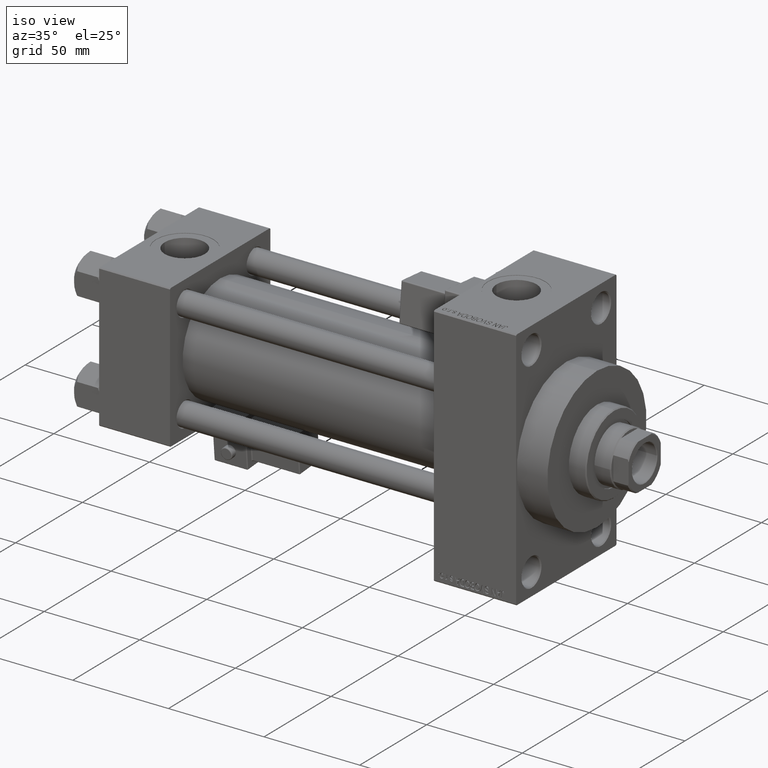
[diagram: clean part render]
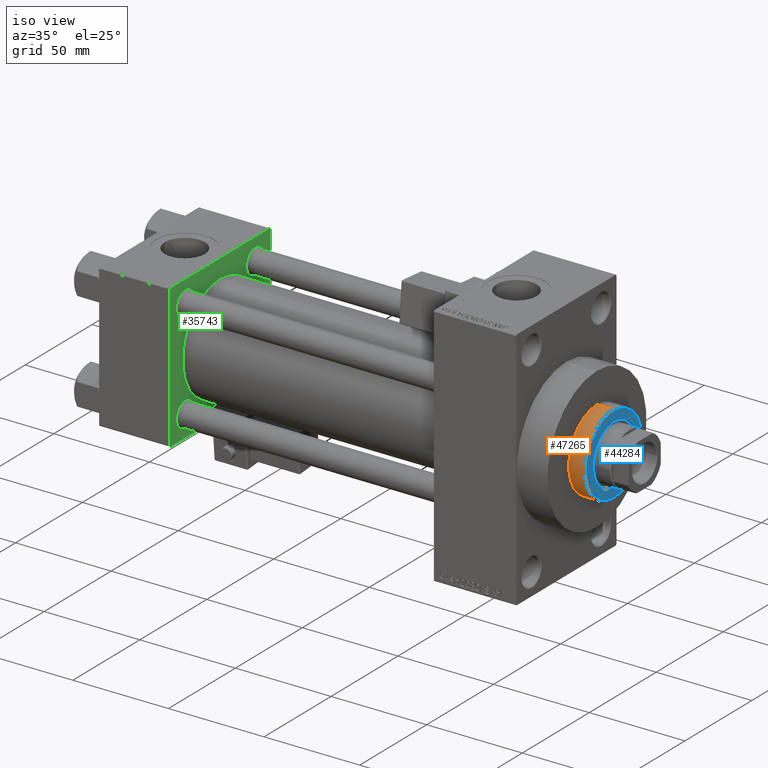
[diagram: same view with three faces highlighted in distinct colors, each labeled with its STEP entity id]
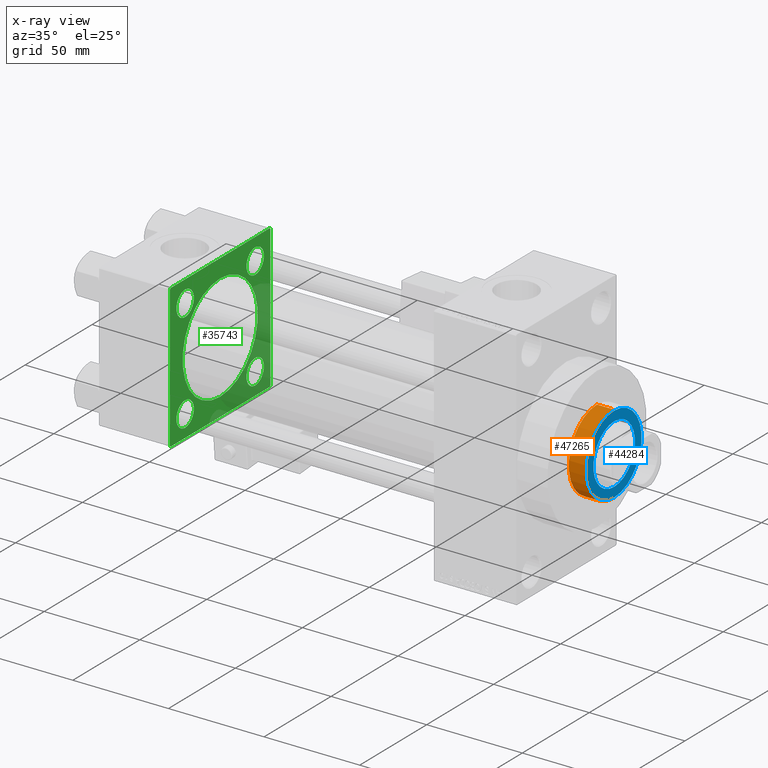
[diagram: x-ray of the same camera — body ghosted, the three highlighted faces saturated]
A machine part, iso view with three faces highlighted in distinct colors.
The next image is the same camera in x-ray (body ghosted, the three faces saturated) — at least one of them is partly hidden behind the body in this view.
Their STEP definitions:

[orange] entity #47265 — the highlighted cylindrical surface (partial cylindrical patch) has radius 21 mm, axis along (-1, -0, 0).
#15 = LINE ( 'NONE', #41246, #29771 ) ;
#1898 = LINE ( 'NONE', #2405, #3151 ) ;
#2405 = CARTESIAN_POINT ( 'NONE',  ( 21.00000000000000000, 2.571758278209441661E-15, 52.25999999999999801 ) ) ;
#3151 = VECTOR ( 'NONE', #32662, 1000.000000000000000 ) ;
#4585 = DIRECTION ( 'NONE',  ( 0.000000000000000000, 0.000000000000000000, 1.000000000000000000 ) ) ;
#4718 = EDGE_LOOP ( 'NONE', ( #48712, #7835, #38796, #14060 ) ) ;
#5081 = CARTESIAN_POINT ( 'NONE',  ( -21.00000000000000000, 0.000000000000000000, 43.25999999999999801 ) ) ;
#7835 = ORIENTED_EDGE ( 'NONE', *, *, #13190, .T. ) ;
#9550 = CIRCLE ( 'NONE', #11954, 21.00000000000000000 ) ;
#11159 = DIRECTION ( 'NONE',  ( -1.000000000000000000, 0.000000000000000000, 0.000000000000000000 ) ) ;
#11352 = DIRECTION ( 'NONE',  ( 1.000000000000000000, 0.000000000000000000, 0.000000000000000000 ) ) ;
#11606 = VERTEX_POINT ( 'NONE', #28533 ) ;
#11954 = AXIS2_PLACEMENT_3D ( 'NONE', #19396, #16867, #17103 ) ;
#11981 = EDGE_CURVE ( 'NONE', #31150, #11606, #1898, .T. ) ;
#12017 = CIRCLE ( 'NONE', #43939, 21.00000000000000000 ) ;
#13190 = EDGE_CURVE ( 'NONE', #31150, #34044, #9550, .T. ) ;
#14060 = ORIENTED_EDGE ( 'NONE', *, *, #18357, .T. ) ;
#14417 = CARTESIAN_POINT ( 'NONE',  ( 0.000000000000000000, 0.000000000000000000, 52.25999999999999801 ) ) ;
#16867 = DIRECTION ( 'NONE',  ( 0.000000000000000000, 0.000000000000000000, -1.000000000000000000 ) ) ;
#17103 = DIRECTION ( 'NONE',  ( 1.000000000000000000, 0.000000000000000000, 0.000000000000000000 ) ) ;
#18357 = EDGE_CURVE ( 'NONE', #39855, #11606, #12017, .T. ) ;
#19396 = CARTESIAN_POINT ( 'NONE',  ( 0.000000000000000000, 0.000000000000000000, 51.75999999999999801 ) ) ;
#19755 = AXIS2_PLACEMENT_3D ( 'NONE', #14417, #29675, #11159 ) ;
#22305 = CARTESIAN_POINT ( 'NONE',  ( -21.00000000000000000, 0.000000000000000000, 51.75999999999999801 ) ) ;
#23309 = EDGE_CURVE ( 'NONE', #34044, #39855, #15, .T. ) ;
#27113 = CARTESIAN_POINT ( 'NONE',  ( 0.000000000000000000, 0.000000000000000000, 43.25999999999999801 ) ) ;
#28533 = CARTESIAN_POINT ( 'NONE',  ( 21.00000000000000000, 2.571758278209441661E-15, 43.25999999999999801 ) ) ;
#29675 = DIRECTION ( 'NONE',  ( -0.000000000000000000, -0.000000000000000000, -1.000000000000000000 ) ) ;
#29771 = VECTOR ( 'NONE', #37256, 1000.000000000000000 ) ;
#30657 = CYLINDRICAL_SURFACE ( 'NONE', #19755, 21.00000000000000000 ) ;
#31150 = VERTEX_POINT ( 'NONE', #36550 ) ;
#32662 = DIRECTION ( 'NONE',  ( -0.000000000000000000, -0.000000000000000000, -1.000000000000000000 ) ) ;
#34044 = VERTEX_POINT ( 'NONE', #22305 ) ;
#36550 = CARTESIAN_POINT ( 'NONE',  ( 21.00000000000000000, 2.571758278209441661E-15, 51.75999999999999801 ) ) ;
#37256 = DIRECTION ( 'NONE',  ( -0.000000000000000000, -0.000000000000000000, -1.000000000000000000 ) ) ;
#38796 = ORIENTED_EDGE ( 'NONE', *, *, #23309, .T. ) ;
#39855 = VERTEX_POINT ( 'NONE', #5081 ) ;
#41246 = CARTESIAN_POINT ( 'NONE',  ( -21.00000000000000000, 0.000000000000000000, 52.25999999999999801 ) ) ;
#43939 = AXIS2_PLACEMENT_3D ( 'NONE', #27113, #4585, #11352 ) ;
#45386 = FACE_OUTER_BOUND ( 'NONE', #4718, .T. ) ;
#47265 = ADVANCED_FACE ( 'NONE', ( #45386 ), #30657, .T. ) ;
#48712 = ORIENTED_EDGE ( 'NONE', *, *, #11981, .F. ) ;

[blue] entity #44284 — the highlighted planar face has unit normal (1, 0, 0).
#2329 = DIRECTION ( 'NONE',  ( 0.000000000000000000, 0.000000000000000000, 1.000000000000000000 ) ) ;
#2635 = DIRECTION ( 'NONE',  ( 0.000000000000000000, 0.000000000000000000, 1.000000000000000000 ) ) ;
#3156 = ORIENTED_EDGE ( 'NONE', *, *, #17260, .T. ) ;
#3216 = AXIS2_PLACEMENT_3D ( 'NONE', #22425, #17948, #34183 ) ;
#4439 = DIRECTION ( 'NONE',  ( 0.000000000000000000, 0.000000000000000000, 1.000000000000000000 ) ) ;
#4682 = EDGE_CURVE ( 'NONE', #16950, #17370, #5358, .T. ) ;
#4691 = DIRECTION ( 'NONE',  ( 1.000000000000000000, 0.000000000000000000, -0.000000000000000000 ) ) ;
#5358 = CIRCLE ( 'NONE', #17311, 20.50000000000000355 ) ;
#6838 = AXIS2_PLACEMENT_3D ( 'NONE', #17824, #2329, #10564 ) ;
#7912 = CARTESIAN_POINT ( 'NONE',  ( -20.50000000000000355, 0.000000000000000000, 52.25999999999999801 ) ) ;
#9120 = ORIENTED_EDGE ( 'NONE', *, *, #33026, .F. ) ;
#10564 = DIRECTION ( 'NONE',  ( 1.000000000000000000, 0.000000000000000000, 0.000000000000000000 ) ) ;
#10767 = DIRECTION ( 'NONE',  ( 1.000000000000000000, 0.000000000000000000, 0.000000000000000000 ) ) ;
#11266 = CARTESIAN_POINT ( 'NONE',  ( 0.000000000000000000, 0.000000000000000000, 52.25999999999999801 ) ) ;
#11939 = DIRECTION ( 'NONE',  ( 0.000000000000000000, 0.000000000000000000, 1.000000000000000000 ) ) ;
#13606 = ORIENTED_EDGE ( 'NONE', *, *, #38709, .F. ) ;
#16950 = VERTEX_POINT ( 'NONE', #47297 ) ;
#17260 = EDGE_CURVE ( 'NONE', #17370, #16950, #24758, .T. ) ;
#17311 = AXIS2_PLACEMENT_3D ( 'NONE', #19692, #11939, #10767 ) ;
#17370 = VERTEX_POINT ( 'NONE', #7912 ) ;
#17824 = CARTESIAN_POINT ( 'NONE',  ( 0.000000000000000000, 0.000000000000000000, 52.25999999999999801 ) ) ;
#17948 = DIRECTION ( 'NONE',  ( 0.000000000000000000, 0.000000000000000000, 1.000000000000000000 ) ) ;
#18769 = FACE_BOUND ( 'NONE', #46116, .T. ) ;
#19692 = CARTESIAN_POINT ( 'NONE',  ( 0.000000000000000000, 0.000000000000000000, 52.25999999999999801 ) ) ;
#20081 = EDGE_LOOP ( 'NONE', ( #3156, #42629 ) ) ;
#21024 = AXIS2_PLACEMENT_3D ( 'NONE', #29147, #2635, #47608 ) ;
#21666 = VERTEX_POINT ( 'NONE', #23384 ) ;
#22425 = CARTESIAN_POINT ( 'NONE',  ( 0.000000000000000000, 0.000000000000000000, 52.25999999999999801 ) ) ;
#23384 = CARTESIAN_POINT ( 'NONE',  ( 15.50000000000000000, 0.000000000000000000, 52.25999999999999801 ) ) ;
#23431 = FACE_OUTER_BOUND ( 'NONE', #20081, .T. ) ;
#24758 = CIRCLE ( 'NONE', #3216, 20.50000000000000355 ) ;
#28242 = CARTESIAN_POINT ( 'NONE',  ( -15.50000000000000000, 1.898202538678397557E-15, 52.25999999999999801 ) ) ;
#28401 = CIRCLE ( 'NONE', #6838, 15.50000000000000000 ) ;
#29147 = CARTESIAN_POINT ( 'NONE',  ( 0.000000000000000000, 0.000000000000000000, 52.25999999999999801 ) ) ;
#29500 = VERTEX_POINT ( 'NONE', #28242 ) ;
#33026 = EDGE_CURVE ( 'NONE', #29500, #21666, #28401, .T. ) ;
#34183 = DIRECTION ( 'NONE',  ( 1.000000000000000000, 0.000000000000000000, 0.000000000000000000 ) ) ;
#36196 = CIRCLE ( 'NONE', #21024, 15.50000000000000000 ) ;
#38709 = EDGE_CURVE ( 'NONE', #21666, #29500, #36196, .T. ) ;
#40410 = AXIS2_PLACEMENT_3D ( 'NONE', #11266, #4439, #4691 ) ;
#42629 = ORIENTED_EDGE ( 'NONE', *, *, #4682, .T. ) ;
#44284 = ADVANCED_FACE ( 'NONE', ( #18769, #23431 ), #49237, .T. ) ;
#46116 = EDGE_LOOP ( 'NONE', ( #13606, #9120 ) ) ;
#47297 = CARTESIAN_POINT ( 'NONE',  ( 20.50000000000000355, 2.541142108230758269E-15, 52.25999999999999801 ) ) ;
#47608 = DIRECTION ( 'NONE',  ( 1.000000000000000000, 0.000000000000000000, 0.000000000000000000 ) ) ;
#49237 = PLANE ( 'NONE',  #40410 ) ;

[green] entity #35743 — the highlighted planar face has unit normal (-1, 0, 0).
#227 = CARTESIAN_POINT ( 'NONE',  ( 37.00000000000000000, 26.14999999999999858, 19.65000000000005187 ) ) ;
#422 = VERTEX_POINT ( 'NONE', #227 ) ;
#488 = CIRCLE ( 'NONE', #18867, 6.499999999999953815 ) ;
#494 = CARTESIAN_POINT ( 'NONE',  ( 37.00000000000000711, 8.269258236473784371E-16, -28.00000000000000000 ) ) ;
#537 = ORIENTED_EDGE ( 'NONE', *, *, #35385, .F. ) ;
#544 = ORIENTED_EDGE ( 'NONE', *, *, #40966, .T. ) ;
#799 = DIRECTION ( 'NONE',  ( -1.000000000000000000, 0.000000000000000000, -0.000000000000000000 ) ) ;
#924 = DIRECTION ( 'NONE',  ( 1.000000000000000000, -0.000000000000000000, 0.000000000000000000 ) ) ;
#1309 = DIRECTION ( 'NONE',  ( -1.000000000000000000, 0.000000000000000000, -0.000000000000000000 ) ) ;
#1352 = LINE ( 'NONE', #5105, #27546 ) ;
#1353 = EDGE_CURVE ( 'NONE', #17996, #48263, #30049, .T. ) ;
#1438 = VECTOR ( 'NONE', #40458, 1000.000000000000000 ) ;
#1722 = LINE ( 'NONE', #43943, #1438 ) ;
#1789 = CARTESIAN_POINT ( 'NONE',  ( 37.00000000000000000, -26.14999999999999147, 26.15000000000000924 ) ) ;
#2511 = CARTESIAN_POINT ( 'NONE',  ( 37.00000000000000000, -37.50000000000000711, 37.49999999999999289 ) ) ;
#2866 = ORIENTED_EDGE ( 'NONE', *, *, #31323, .T. ) ;
#2884 = DIRECTION ( 'NONE',  ( -1.000000000000000000, 0.000000000000000000, -0.000000000000000000 ) ) ;
#3148 = CARTESIAN_POINT ( 'NONE',  ( 37.00000000000000000, -26.14999999999999147, -32.65000000000001279 ) ) ;
#3298 = CARTESIAN_POINT ( 'NONE',  ( 37.00000000000000000, 36.99999999999999289, 37.50000000000000000 ) ) ;
#3463 = ORIENTED_EDGE ( 'NONE', *, *, #28443, .F. ) ;
#4186 = CARTESIAN_POINT ( 'NONE',  ( 37.00000000000000711, -2.602085213965210642E-15, 0.000000000000000000 ) ) ;
#4550 = CARTESIAN_POINT ( 'NONE',  ( 37.00000000000000000, 36.99999999999997868, -37.50000000000000000 ) ) ;
#4648 = AXIS2_PLACEMENT_3D ( 'NONE', #5594, #20839, #30705 ) ;
#5105 = CARTESIAN_POINT ( 'NONE',  ( 37.00000000000000000, -37.50000000000000711, 36.99999999999999289 ) ) ;
#5592 = DIRECTION ( 'NONE',  ( -0.000000000000000000, -0.7071067811865474617, -0.7071067811865474617 ) ) ;
#5594 = CARTESIAN_POINT ( 'NONE',  ( 37.00000000000000000, 0.000000000000000000, 0.000000000000000000 ) ) ;
#5672 = VERTEX_POINT ( 'NONE', #36957 ) ;
#6000 = EDGE_LOOP ( 'NONE', ( #8136, #27910 ) ) ;
#6118 = VERTEX_POINT ( 'NONE', #3148 ) ;
#6459 = CIRCLE ( 'NONE', #44770, 6.500000000000008882 ) ;
#7586 = CIRCLE ( 'NONE', #48278, 6.499999999999946709 ) ;
#7615 = DIRECTION ( 'NONE',  ( -1.000000000000000000, 0.000000000000000000, -0.000000000000000000 ) ) ;
#7697 = CARTESIAN_POINT ( 'NONE',  ( 37.00000000000000000, 37.49999999999999289, 37.50000000000000000 ) ) ;
#8136 = ORIENTED_EDGE ( 'NONE', *, *, #13546, .T. ) ;
#8403 = AXIS2_PLACEMENT_3D ( 'NONE', #4186, #924, #45428 ) ;
#8525 = VECTOR ( 'NONE', #18553, 1000.000000000000114 ) ;
#9254 = CARTESIAN_POINT ( 'NONE',  ( 37.00000000000000000, 36.99999999999999289, 37.50000000000000000 ) ) ;
#9332 = FACE_BOUND ( 'NONE', #21676, .T. ) ;
#10341 = ORIENTED_EDGE ( 'NONE', *, *, #27716, .T. ) ;
#10662 = ORIENTED_EDGE ( 'NONE', *, *, #44407, .T. ) ;
#11180 = AXIS2_PLACEMENT_3D ( 'NONE', #1789, #1309, #31821 ) ;
#11371 = LINE ( 'NONE', #45845, #39488 ) ;
#11583 = ORIENTED_EDGE ( 'NONE', *, *, #26092, .T. ) ;
#11761 = VERTEX_POINT ( 'NONE', #37512 ) ;
#13001 = CARTESIAN_POINT ( 'NONE',  ( 37.00000000000000000, 26.14999999999999858, -26.15000000000000213 ) ) ;
#13091 = FACE_BOUND ( 'NONE', #34816, .T. ) ;
#13252 = CIRCLE ( 'NONE', #41993, 6.500000000000002665 ) ;
#13546 = EDGE_CURVE ( 'NONE', #11761, #17207, #23954, .T. ) ;
#14874 = DIRECTION ( 'NONE',  ( 0.000000000000000000, 0.000000000000000000, 1.000000000000000000 ) ) ;
#15484 = AXIS2_PLACEMENT_3D ( 'NONE', #17609, #31696, #46911 ) ;
#15949 = CARTESIAN_POINT ( 'NONE',  ( 37.00000000000000000, 37.49999999999999289, -36.99999999999998579 ) ) ;
#16108 = CARTESIAN_POINT ( 'NONE',  ( 37.00000000000000000, -37.00000000000002132, -37.50000000000000711 ) ) ;
#16901 = CARTESIAN_POINT ( 'NONE',  ( 37.00000000000000711, -2.602085213965210642E-15, 28.00000000000000000 ) ) ;
#17207 = VERTEX_POINT ( 'NONE', #24206 ) ;
#17325 = DIRECTION ( 'NONE',  ( -1.000000000000000000, 0.000000000000000000, -0.000000000000000000 ) ) ;
#17609 = CARTESIAN_POINT ( 'NONE',  ( 37.00000000000000711, -2.602085213965210642E-15, 0.000000000000000000 ) ) ;
#17996 = VERTEX_POINT ( 'NONE', #26672 ) ;
#18138 = DIRECTION ( 'NONE',  ( 0.000000000000000000, 0.000000000000000000, 1.000000000000000000 ) ) ;
#18386 = CARTESIAN_POINT ( 'NONE',  ( 37.00000000000000000, -26.14999999999999147, -26.15000000000000924 ) ) ;
#18553 = DIRECTION ( 'NONE',  ( 0.000000000000000000, -0.7071067811865474617, 0.7071067811865474617 ) ) ;
#18867 = AXIS2_PLACEMENT_3D ( 'NONE', #45864, #26901, #46354 ) ;
#19412 = EDGE_CURVE ( 'NONE', #17996, #22108, #33801, .T. ) ;
#19546 = AXIS2_PLACEMENT_3D ( 'NONE', #38120, #7615, #14874 ) ;
#19993 = EDGE_CURVE ( 'NONE', #6118, #42518, #21661, .T. ) ;
#20038 = EDGE_CURVE ( 'NONE', #17207, #11761, #6459, .T. ) ;
#20600 = FACE_BOUND ( 'NONE', #47909, .T. ) ;
#20799 = ORIENTED_EDGE ( 'NONE', *, *, #39327, .T. ) ;
#20839 = DIRECTION ( 'NONE',  ( -1.000000000000000000, 0.000000000000000000, -0.000000000000000000 ) ) ;
#21362 = VERTEX_POINT ( 'NONE', #30719 ) ;
#21661 = CIRCLE ( 'NONE', #48766, 6.500000000000002665 ) ;
#21676 = EDGE_LOOP ( 'NONE', ( #43748, #3463 ) ) ;
#21893 = VECTOR ( 'NONE', #28770, 1000.000000000000000 ) ;
#21939 = CIRCLE ( 'NONE', #19546, 6.499999999999953815 ) ;
#22108 = VERTEX_POINT ( 'NONE', #42798 ) ;
#23533 = DIRECTION ( 'NONE',  ( 0.000000000000000000, 0.000000000000000000, 1.000000000000000000 ) ) ;
#23954 = CIRCLE ( 'NONE', #11180, 6.500000000000008882 ) ;
#24037 = CARTESIAN_POINT ( 'NONE',  ( 37.00000000000000000, 26.14999999999999858, -32.64999999999994884 ) ) ;
#24206 = CARTESIAN_POINT ( 'NONE',  ( 37.00000000000000000, -26.14999999999999147, 32.65000000000001990 ) ) ;
#24285 = VECTOR ( 'NONE', #42191, 1000.000000000000000 ) ;
#25100 = VERTEX_POINT ( 'NONE', #41138 ) ;
#25258 = VERTEX_POINT ( 'NONE', #43329 ) ;
#25324 = DIRECTION ( 'NONE',  ( 0.000000000000000000, 0.000000000000000000, 1.000000000000000000 ) ) ;
#26082 = EDGE_CURVE ( 'NONE', #38632, #41334, #45790, .T. ) ;
#26092 = EDGE_CURVE ( 'NONE', #35991, #22108, #27954, .T. ) ;
#26672 = CARTESIAN_POINT ( 'NONE',  ( 37.00000000000000000, 37.49999999999999289, 37.00000000000000000 ) ) ;
#26901 = DIRECTION ( 'NONE',  ( -1.000000000000000000, 0.000000000000000000, -0.000000000000000000 ) ) ;
#27546 = VECTOR ( 'NONE', #5592, 1000.000000000000114 ) ;
#27716 = EDGE_CURVE ( 'NONE', #25100, #27857, #11371, .T. ) ;
#27779 = EDGE_CURVE ( 'NONE', #422, #21362, #21939, .T. ) ;
#27857 = VERTEX_POINT ( 'NONE', #16108 ) ;
#27910 = ORIENTED_EDGE ( 'NONE', *, *, #20038, .T. ) ;
#27954 = LINE ( 'NONE', #15949, #43398 ) ;
#28356 = FACE_OUTER_BOUND ( 'NONE', #33776, .T. ) ;
#28443 = EDGE_CURVE ( 'NONE', #41334, #38632, #30771, .T. ) ;
#28731 = EDGE_CURVE ( 'NONE', #42641, #5672, #1352, .T. ) ;
#28770 = DIRECTION ( 'NONE',  ( 0.000000000000000000, 9.251858538542971581E-17, -1.000000000000000000 ) ) ;
#29598 = EDGE_CURVE ( 'NONE', #48263, #42641, #33711, .T. ) ;
#29812 = DIRECTION ( 'NONE',  ( 0.000000000000000000, 0.000000000000000000, -1.000000000000000000 ) ) ;
#30049 = LINE ( 'NONE', #3298, #8525 ) ;
#30705 = DIRECTION ( 'NONE',  ( -0.000000000000000000, 0.000000000000000000, 1.000000000000000000 ) ) ;
#30719 = CARTESIAN_POINT ( 'NONE',  ( 37.00000000000000000, 26.14999999999999858, 32.64999999999995595 ) ) ;
#30771 = CIRCLE ( 'NONE', #8403, 28.00000000000000000 ) ;
#31058 = CARTESIAN_POINT ( 'NONE',  ( 37.00000000000000000, 26.14999999999999858, -26.15000000000000213 ) ) ;
#31323 = EDGE_CURVE ( 'NONE', #39309, #25258, #7586, .T. ) ;
#31414 = CARTESIAN_POINT ( 'NONE',  ( 37.00000000000000000, -37.00000000000000711, 37.49999999999999289 ) ) ;
#31566 = EDGE_LOOP ( 'NONE', ( #35084, #46436 ) ) ;
#31696 = DIRECTION ( 'NONE',  ( 1.000000000000000000, -0.000000000000000000, 0.000000000000000000 ) ) ;
#31821 = DIRECTION ( 'NONE',  ( 0.000000000000000000, 0.000000000000000000, 1.000000000000000000 ) ) ;
#32100 = FACE_BOUND ( 'NONE', #6000, .T. ) ;
#32486 = DIRECTION ( 'NONE',  ( -1.000000000000000000, 0.000000000000000000, -0.000000000000000000 ) ) ;
#33711 = LINE ( 'NONE', #7697, #24285 ) ;
#33776 = EDGE_LOOP ( 'NONE', ( #537, #11583, #45380, #40671, #35209, #46548, #544, #10341 ) ) ;
#33801 = LINE ( 'NONE', #41541, #39988 ) ;
#33871 = CARTESIAN_POINT ( 'NONE',  ( 37.00000000000000000, -26.14999999999999147, 26.15000000000000924 ) ) ;
#33924 = EDGE_CURVE ( 'NONE', #42518, #6118, #13252, .T. ) ;
#34450 = FACE_BOUND ( 'NONE', #31566, .T. ) ;
#34678 = CARTESIAN_POINT ( 'NONE',  ( 37.00000000000000000, -26.14999999999999147, -19.65000000000000924 ) ) ;
#34816 = EDGE_LOOP ( 'NONE', ( #42071, #10662 ) ) ;
#35084 = ORIENTED_EDGE ( 'NONE', *, *, #19993, .T. ) ;
#35209 = ORIENTED_EDGE ( 'NONE', *, *, #29598, .T. ) ;
#35385 = EDGE_CURVE ( 'NONE', #35991, #27857, #1722, .T. ) ;
#35426 = CIRCLE ( 'NONE', #41795, 6.499999999999946709 ) ;
#35743 = ADVANCED_FACE ( 'NONE', ( #34450, #20600, #32100, #13091, #9332, #28356 ), #43579, .F. ) ;
#35991 = VERTEX_POINT ( 'NONE', #4550 ) ;
#36573 = CARTESIAN_POINT ( 'NONE',  ( 37.00000000000000000, -26.14999999999999147, -26.15000000000000924 ) ) ;
#36957 = CARTESIAN_POINT ( 'NONE',  ( 37.00000000000000000, -37.50000000000000711, 36.99999999999999289 ) ) ;
#37512 = CARTESIAN_POINT ( 'NONE',  ( 37.00000000000000000, -26.14999999999999147, 19.65000000000000213 ) ) ;
#37866 = DIRECTION ( 'NONE',  ( 0.000000000000000000, 0.7071067811865524577, -0.7071067811865426878 ) ) ;
#38120 = CARTESIAN_POINT ( 'NONE',  ( 37.00000000000000000, 26.14999999999999858, 26.15000000000000213 ) ) ;
#38632 = VERTEX_POINT ( 'NONE', #16901 ) ;
#39309 = VERTEX_POINT ( 'NONE', #24037 ) ;
#39327 = EDGE_CURVE ( 'NONE', #25258, #39309, #35426, .T. ) ;
#39488 = VECTOR ( 'NONE', #37866, 1000.000000000000000 ) ;
#39988 = VECTOR ( 'NONE', #29812, 1000.000000000000000 ) ;
#40253 = LINE ( 'NONE', #2511, #21893 ) ;
#40458 = DIRECTION ( 'NONE',  ( 0.000000000000000000, -1.000000000000000000, -9.251858538542972814E-17 ) ) ;
#40671 = ORIENTED_EDGE ( 'NONE', *, *, #1353, .T. ) ;
#40966 = EDGE_CURVE ( 'NONE', #5672, #25100, #40253, .T. ) ;
#41138 = CARTESIAN_POINT ( 'NONE',  ( 37.00000000000000000, -37.50000000000000000, -37.00000000000003553 ) ) ;
#41334 = VERTEX_POINT ( 'NONE', #494 ) ;
#41541 = CARTESIAN_POINT ( 'NONE',  ( 37.00000000000000000, 37.49999999999999289, 37.50000000000000000 ) ) ;
#41795 = AXIS2_PLACEMENT_3D ( 'NONE', #31058, #799, #23533 ) ;
#41993 = AXIS2_PLACEMENT_3D ( 'NONE', #36573, #17325, #25324 ) ;
#42071 = ORIENTED_EDGE ( 'NONE', *, *, #27779, .T. ) ;
#42191 = DIRECTION ( 'NONE',  ( 0.000000000000000000, -1.000000000000000000, -9.251858538542971581E-17 ) ) ;
#42518 = VERTEX_POINT ( 'NONE', #34678 ) ;
#42641 = VERTEX_POINT ( 'NONE', #31414 ) ;
#42798 = CARTESIAN_POINT ( 'NONE',  ( 37.00000000000000000, 37.49999999999999289, -36.99999999999998579 ) ) ;
#43169 = DIRECTION ( 'NONE',  ( -0.000000000000000000, 0.7071067811865474617, 0.7071067811865474617 ) ) ;
#43329 = CARTESIAN_POINT ( 'NONE',  ( 37.00000000000000000, 26.14999999999999858, -19.65000000000005542 ) ) ;
#43398 = VECTOR ( 'NONE', #43169, 1000.000000000000114 ) ;
#43478 = DIRECTION ( 'NONE',  ( 0.000000000000000000, 0.000000000000000000, 1.000000000000000000 ) ) ;
#43579 = PLANE ( 'NONE',  #4648 ) ;
#43748 = ORIENTED_EDGE ( 'NONE', *, *, #26082, .F. ) ;
#43943 = CARTESIAN_POINT ( 'NONE',  ( 37.00000000000000000, 37.49999999999999289, -37.50000000000000000 ) ) ;
#44407 = EDGE_CURVE ( 'NONE', #21362, #422, #488, .T. ) ;
#44770 = AXIS2_PLACEMENT_3D ( 'NONE', #33871, #48605, #49098 ) ;
#45380 = ORIENTED_EDGE ( 'NONE', *, *, #19412, .F. ) ;
#45428 = DIRECTION ( 'NONE',  ( 0.000000000000000000, 0.000000000000000000, 1.000000000000000000 ) ) ;
#45790 = CIRCLE ( 'NONE', #15484, 28.00000000000000000 ) ;
#45845 = CARTESIAN_POINT ( 'NONE',  ( 37.00000000000000000, -37.00000000000002132, -37.50000000000000711 ) ) ;
#45864 = CARTESIAN_POINT ( 'NONE',  ( 37.00000000000000000, 26.14999999999999858, 26.15000000000000213 ) ) ;
#46354 = DIRECTION ( 'NONE',  ( 0.000000000000000000, 0.000000000000000000, 1.000000000000000000 ) ) ;
#46436 = ORIENTED_EDGE ( 'NONE', *, *, #33924, .T. ) ;
#46548 = ORIENTED_EDGE ( 'NONE', *, *, #28731, .T. ) ;
#46911 = DIRECTION ( 'NONE',  ( 0.000000000000000000, 0.000000000000000000, 1.000000000000000000 ) ) ;
#47909 = EDGE_LOOP ( 'NONE', ( #2866, #20799 ) ) ;
#48263 = VERTEX_POINT ( 'NONE', #9254 ) ;
#48278 = AXIS2_PLACEMENT_3D ( 'NONE', #13001, #32486, #43478 ) ;
#48605 = DIRECTION ( 'NONE',  ( -1.000000000000000000, 0.000000000000000000, -0.000000000000000000 ) ) ;
#48766 = AXIS2_PLACEMENT_3D ( 'NONE', #18386, #2884, #18138 ) ;
#49098 = DIRECTION ( 'NONE',  ( 0.000000000000000000, 0.000000000000000000, 1.000000000000000000 ) ) ;